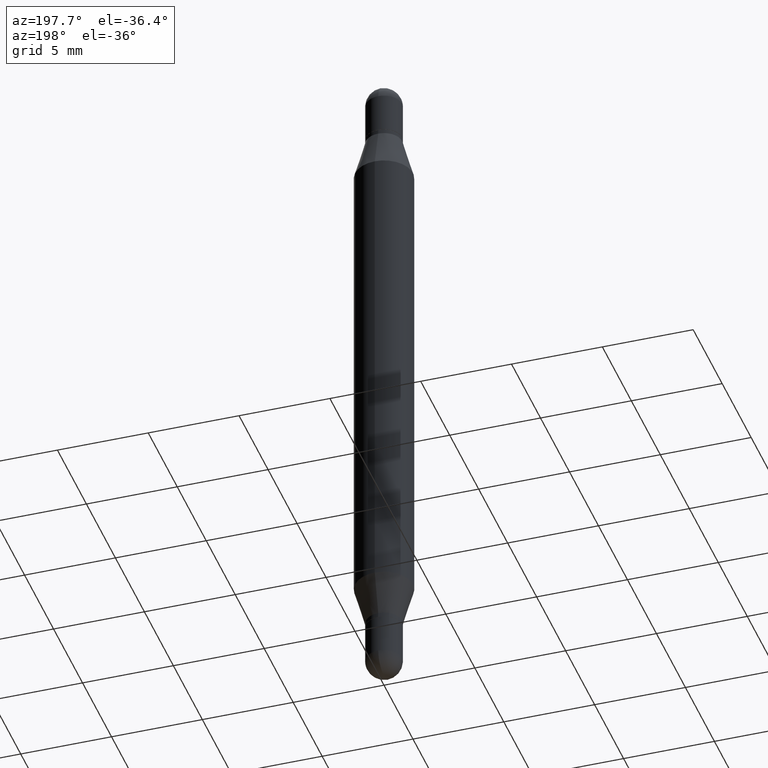
[diagram: clean part render]
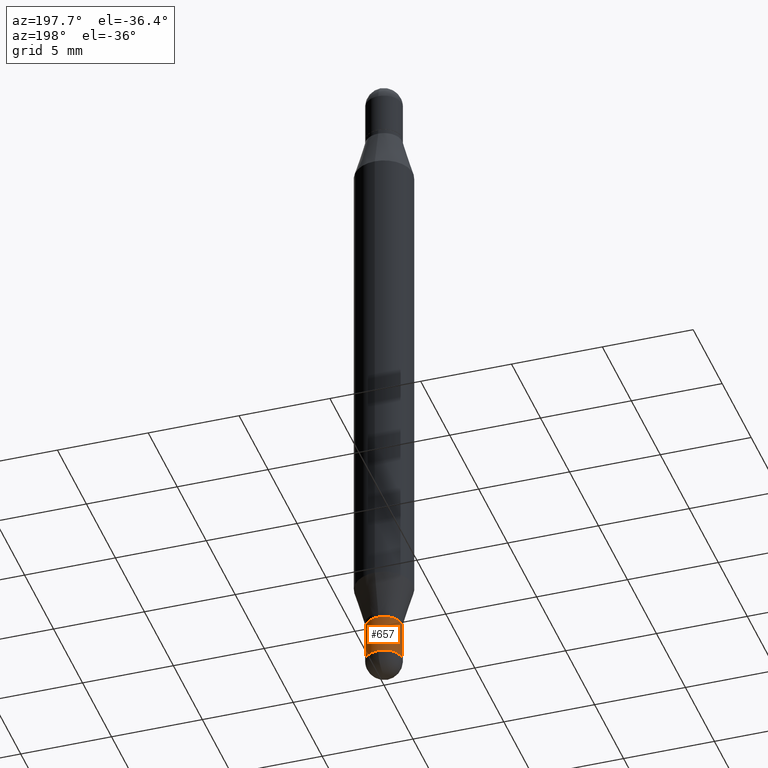
[diagram: same view with one face highlighted and labeled with its STEP entity id]
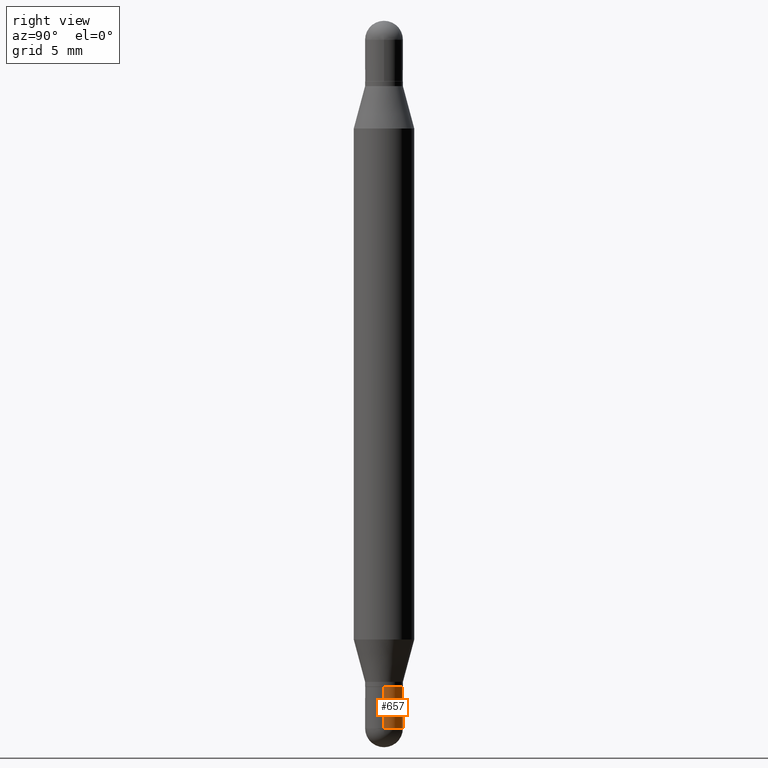
[diagram: same view with one face highlighted and labeled with its STEP entity id]
A machine part, auxiliary view. The second image highlights one B-rep face of the part: STEP entity #657.
A second angle (right view) of the same face is appended — the face is thin or edge-on in the first view.
In plain terms, the highlighted cylindrical surface (edge-blend (fillet) strip) has radius 0.9919 mm, axis along (-0, 0, 1).
Its self-contained STEP definition (entity closure, byte-faithful):
#14 = CARTESIAN_POINT ( 'NONE',  ( 3.362519608504562821E-29, -4.800786840909326507E-15, -1.375000000000000222 ) ) ;
#64 = AXIS2_PLACEMENT_3D ( 'NONE', #446, #368, #617 ) ;
#71 = EDGE_CURVE ( 'NONE', #492, #445, #346, .T. ) ;
#92 = DIRECTION ( 'NONE',  ( -2.445468806185136877E-29, 3.491481338843145188E-15, 1.000000000000000000 ) ) ;
#167 = CARTESIAN_POINT ( 'NONE',  ( -0.03905000000000000832, -4.673366313131790734E-15, -1.460950000000000193 ) ) ;
#274 = VERTEX_POINT ( 'NONE', #287 ) ;
#287 = CARTESIAN_POINT ( 'NONE',  ( 0.03905000000000000138, -5.073471533472974831E-15, -1.375000000000000222 ) ) ;
#313 = CARTESIAN_POINT ( 'NONE',  ( 3.572707652396175485E-29, -5.100879661982893620E-15, -1.460950000000000193 ) ) ;
#325 = VERTEX_POINT ( 'NONE', #817 ) ;
#346 = LINE ( 'NONE', #771, #878 ) ;
#364 = CIRCLE ( 'NONE', #669, 0.03905000000000000832 ) ;
#368 = DIRECTION ( 'NONE',  ( -2.445468806185136597E-29, 3.491481338843145583E-15, 1.000000000000000000 ) ) ;
#440 = DIRECTION ( 'NONE',  ( -2.445468806185136597E-29, 3.491481338843145583E-15, 1.000000000000000000 ) ) ;
#445 = VERTEX_POINT ( 'NONE', #502 ) ;
#446 = CARTESIAN_POINT ( 'NONE',  ( 0.000000000000000000, 0.000000000000000000, 0.000000000000000000 ) ) ;
#455 = DIRECTION ( 'NONE',  ( -2.445468806185136877E-29, 3.491481338843145188E-15, 1.000000000000000000 ) ) ;
#492 = VERTEX_POINT ( 'NONE', #167 ) ;
#502 = CARTESIAN_POINT ( 'NONE',  ( -0.03905000000000000138, -4.673366313131790734E-15, -1.375000000000000222 ) ) ;
#521 = CYLINDRICAL_SURFACE ( 'NONE', #64, 0.03905000000000000832 ) ;
#536 = FACE_OUTER_BOUND ( 'NONE', #566, .T. ) ;
#566 = EDGE_LOOP ( 'NONE', ( #586, #963, #1088, #1021, #732 ) ) ;
#574 = EDGE_CURVE ( 'NONE', #325, #274, #883, .T. ) ;
#582 = CIRCLE ( 'NONE', #683, 0.03905000000000000138 ) ;
#586 = ORIENTED_EDGE ( 'NONE', *, *, #1062, .T. ) ;
#600 = AXIS2_PLACEMENT_3D ( 'NONE', #615, #640, #726 ) ;
#615 = CARTESIAN_POINT ( 'NONE',  ( 3.572707652396175485E-29, -5.100879661982893620E-15, -1.460950000000000193 ) ) ;
#617 = DIRECTION ( 'NONE',  ( 1.000000000000000000, -6.982962677686266711E-15, 4.876176775795935232E-29 ) ) ;
#640 = DIRECTION ( 'NONE',  ( -2.445468806185136597E-29, 3.491481338843145583E-15, 1.000000000000000000 ) ) ;
#657 = ADVANCED_FACE ( 'NONE', ( #536 ), #521, .T. ) ;
#660 = EDGE_CURVE ( 'NONE', #274, #445, #582, .T. ) ;
#669 = AXIS2_PLACEMENT_3D ( 'NONE', #313, #843, #940 ) ;
#683 = AXIS2_PLACEMENT_3D ( 'NONE', #14, #440, #864 ) ;
#699 = CARTESIAN_POINT ( 'NONE',  ( 0.03905000000000000832, -2.726846925636487675E-16, 1.904147030948313202E-30 ) ) ;
#726 = DIRECTION ( 'NONE',  ( 1.000000000000000000, -6.982962677686265133E-15, 0.000000000000000000 ) ) ;
#732 = ORIENTED_EDGE ( 'NONE', *, *, #863, .T. ) ;
#771 = CARTESIAN_POINT ( 'NONE',  ( -0.03905000000000000832, 2.774669383143191817E-16, -1.920844152744540988E-30 ) ) ;
#817 = CARTESIAN_POINT ( 'NONE',  ( 0.03905000000000000832, -5.223517944009758388E-15, -1.460950000000000193 ) ) ;
#843 = DIRECTION ( 'NONE',  ( -2.445468806185136597E-29, 3.491481338843145583E-15, 1.000000000000000000 ) ) ;
#863 = EDGE_CURVE ( 'NONE', #325, #900, #364, .T. ) ;
#864 = DIRECTION ( 'NONE',  ( 1.000000000000000000, -6.982962677686266711E-15, 0.000000000000000000 ) ) ;
#878 = VECTOR ( 'NONE', #92, 39.37007874015748143 ) ;
#883 = LINE ( 'NONE', #699, #949 ) ;
#900 = VERTEX_POINT ( 'NONE', #953 ) ;
#940 = DIRECTION ( 'NONE',  ( 1.000000000000000000, -6.982962677686265133E-15, 0.000000000000000000 ) ) ;
#949 = VECTOR ( 'NONE', #455, 39.37007874015748143 ) ;
#953 = CARTESIAN_POINT ( 'NONE',  ( 2.726846925636844142E-16, 0.03904999999999489435, -1.460950000000000193 ) ) ;
#963 = ORIENTED_EDGE ( 'NONE', *, *, #71, .T. ) ;
#1021 = ORIENTED_EDGE ( 'NONE', *, *, #574, .F. ) ;
#1025 = CIRCLE ( 'NONE', #600, 0.03905000000000000832 ) ;
#1062 = EDGE_CURVE ( 'NONE', #900, #492, #1025, .T. ) ;
#1088 = ORIENTED_EDGE ( 'NONE', *, *, #660, .F. ) ;